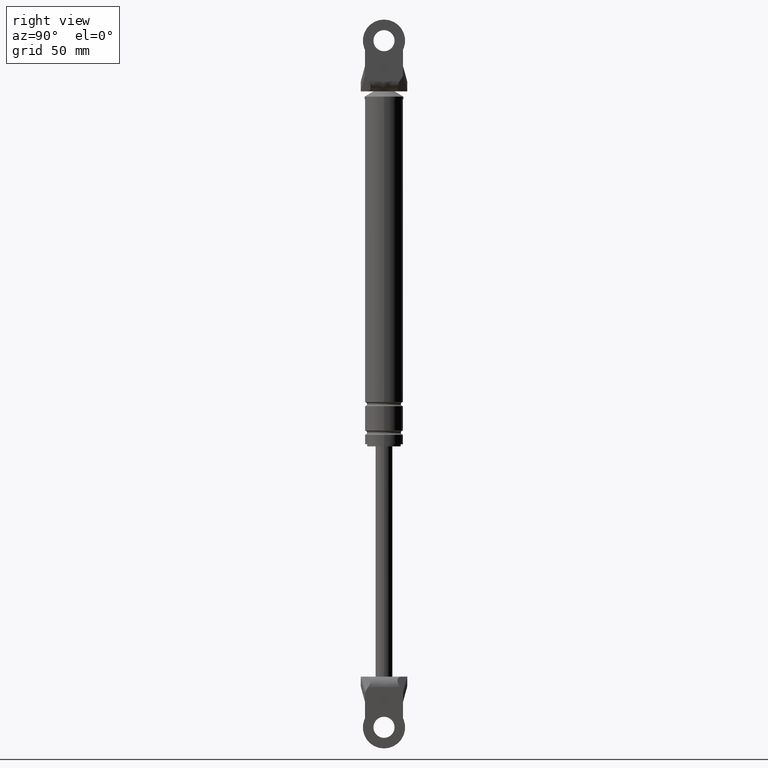
[diagram: clean part render]
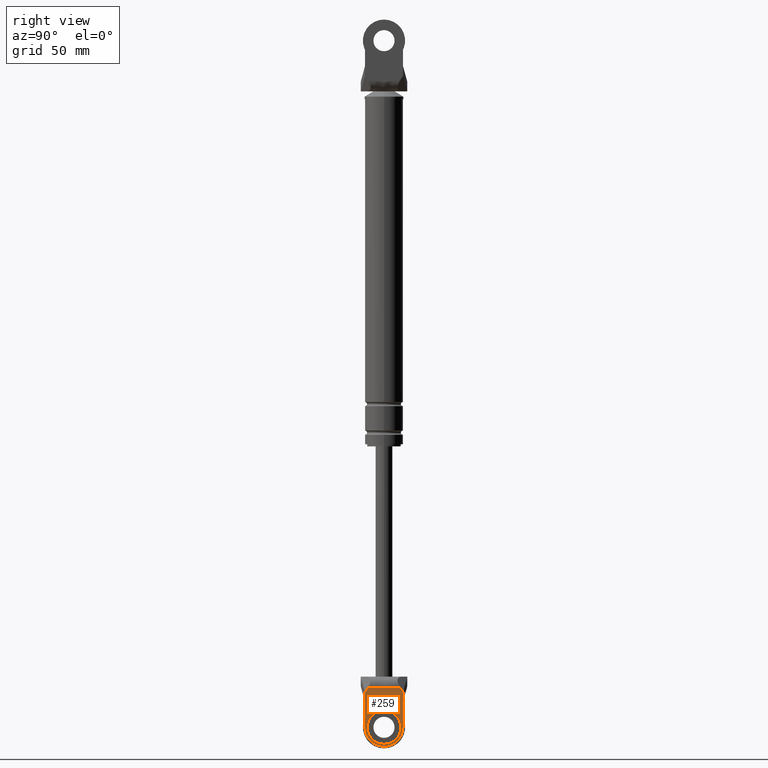
[diagram: same view with one face highlighted and labeled with its STEP entity id]
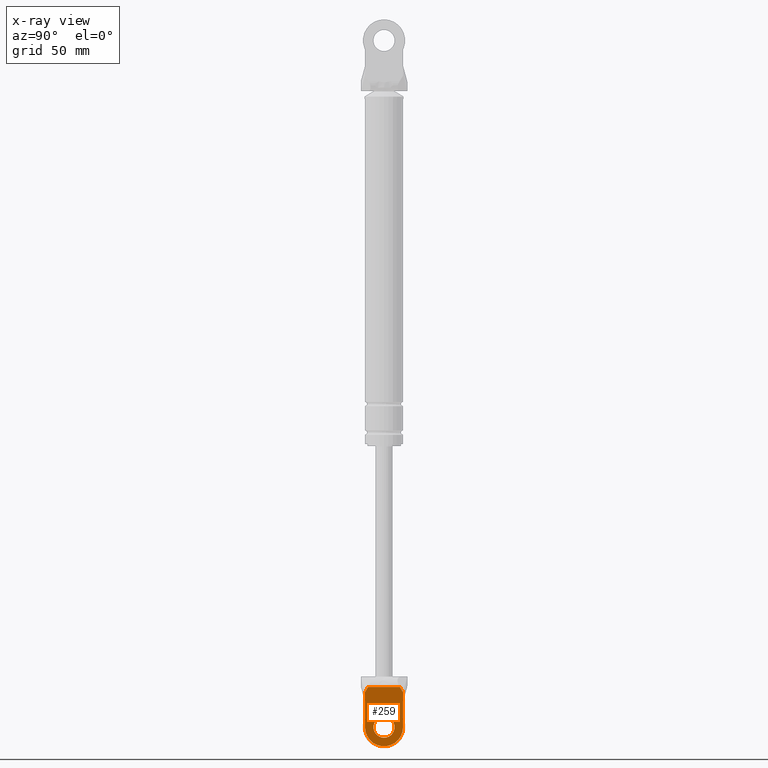
[diagram: x-ray of the same camera — body ghosted, the highlighted face saturated]
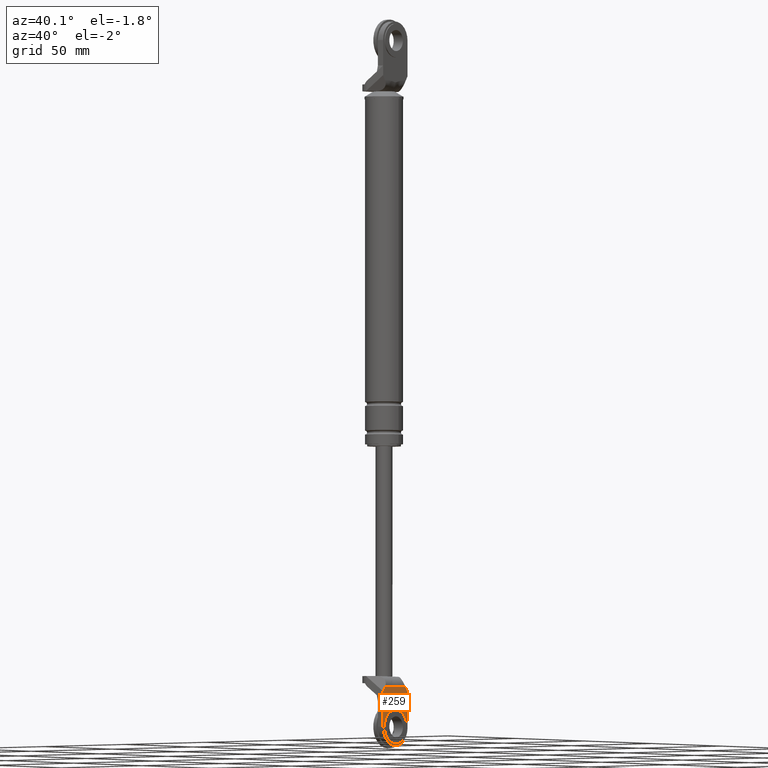
[diagram: same view with one face highlighted and labeled with its STEP entity id]
A machine part, right view. The second image highlights one B-rep face of the part: STEP entity #259.
The next image is the same camera in x-ray: the body ghosted, the highlighted face saturated — about 0% of this face is hidden behind the body in this view.
A second angle (auxiliary view) of the same face is appended — the face is thin or edge-on in the first view.
In plain terms, the highlighted planar face has unit normal (1, 0, 0).
Its self-contained STEP definition (entity closure, byte-faithful):
#259=ADVANCED_FACE('',(#845,#846),#844,.T.);
#844=PLANE('',#1578);
#845=FACE_OUTER_BOUND('',#1579,.T.);
#846=FACE_BOUND('',#1580,.T.);
#1575=CARTESIAN_POINT('',(7.00000000000E+000,-1.08000008639E+001,-1.90088870872E+002));
#1576=DIRECTION('',(1.00000000000E+000,0.00000000000E+000,0.00000000000E+000));
#1577=DIRECTION('',(0.00000000000E+000,0.00000000000E+000,-1.00000000000E+000));
#1578=AXIS2_PLACEMENT_3D('',#1575,#1576,#1577);
#1579=EDGE_LOOP('',(#2016,#2017,#2018,#2019,#2020,#2021,#2022,#2023,#2024,#2025));
#1580=EDGE_LOOP('',(#2026,#2027));
#2016=ORIENTED_EDGE('',*,*,#2285,.T.);
#2017=ORIENTED_EDGE('',*,*,#2286,.T.);
#2018=ORIENTED_EDGE('',*,*,#2287,.T.);
#2019=ORIENTED_EDGE('',*,*,#2288,.T.);
#2020=ORIENTED_EDGE('',*,*,#2289,.T.);
#2021=ORIENTED_EDGE('',*,*,#2290,.F.);
#2022=ORIENTED_EDGE('',*,*,#2291,.F.);
#2023=ORIENTED_EDGE('',*,*,#2292,.T.);
#2024=ORIENTED_EDGE('',*,*,#2293,.F.);
#2025=ORIENTED_EDGE('',*,*,#2294,.T.);
#2026=ORIENTED_EDGE('',*,*,#2295,.F.);
#2027=ORIENTED_EDGE('',*,*,#2296,.F.);
#2285=EDGE_CURVE('',#3198,#3199,#3200,.T.);
#2286=EDGE_CURVE('',#3199,#3206,#3207,.T.);
#2287=EDGE_CURVE('',#3206,#3213,#3214,.T.);
#2288=EDGE_CURVE('',#3213,#3220,#3221,.T.);
#2289=EDGE_CURVE('',#3220,#3227,#3228,.T.);
#2290=EDGE_CURVE('',#3234,#3227,#3235,.T.);
#2291=EDGE_CURVE('',#3241,#3234,#3242,.T.);
#2292=EDGE_CURVE('',#3241,#3248,#3249,.T.);
#2293=EDGE_CURVE('',#3255,#3248,#3256,.T.);
#2294=EDGE_CURVE('',#3255,#3198,#3262,.T.);
#2295=EDGE_CURVE('',#3268,#3269,#3270,.T.);
#2296=EDGE_CURVE('',#3269,#3268,#3276,.T.);
#3198=VERTEX_POINT('',#4187);
#3199=VERTEX_POINT('',#4188);
#3200=LINE('',#4189,#4190);
#3206=VERTEX_POINT('',#4192);
#3207=LINE('',#4193,#4194);
#3213=VERTEX_POINT('',#4196);
#3214=(BOUNDED_CURVE() B_SPLINE_CURVE(3,(#4197,#4198,#4199,#4200,#4201,#4202),.UNSPECIFIED.,.F.,.F.) B_SPLINE_CURVE_WITH_KNOTS((4,2,4),(0.00000000000E+000,2.23783750894E-003,4.47567501788E-003),.UNSPECIFIED.) CURVE() GEOMETRIC_REPRESENTATION_ITEM() RATIONAL_B_SPLINE_CURVE((1.00000000000E+000,1.00000000000E+000,1.00000000000E+000,1.00000000000E+000,1.00000000000E+000,1.00000000000E+000)) REPRESENTATION_ITEM('') );
#3220=VERTEX_POINT('',#4203);
#3221=LINE('',#4204,#4205);
#3227=VERTEX_POINT('',#4207);
#3228=LINE('',#4208,#4209);
#3234=VERTEX_POINT('',#4211);
#3235=LINE('',#4212,#4213);
#3241=VERTEX_POINT('',#4215);
#3242=LINE('',#4216,#4217);
#3248=VERTEX_POINT('',#4219);
#3249=CIRCLE('',#4223,9.00000000000E+000);
#3255=VERTEX_POINT('',#4224);
#3256=LINE('',#4225,#4226);
#3262=LINE('',#4228,#4229);
#3268=VERTEX_POINT('',#4231);
#3269=VERTEX_POINT('',#4232);
#3270=CIRCLE('',#4236,5.00000000000E+000);
#3276=CIRCLE('',#4240,5.00000000000E+000);
#4187=CARTESIAN_POINT('',(7.00000000000E+000,9.00000000000E+000,-1.95379525618E+002));
#4188=CARTESIAN_POINT('',(7.00000000000E+000,7.51280740496E+000,-1.93000015000E+002));
#4189=CARTESIAN_POINT('',(7.00000000000E+000,9.00000000000E+000,-1.95379525618E+002));
#4190=VECTOR('',#4191,2.80603146760E+000);
#4191=DIRECTION('',(0.00000000000E+000,-5.29998544994E-001,8.47998550886E-001));
#4192=CARTESIAN_POINT('',(7.00000000000E+000,2.23606797750E+000,-1.93000015000E+002));
#4193=CARTESIAN_POINT('',(7.00000000000E+000,7.51280740496E+000,-1.93000015000E+002));
#4194=VECTOR('',#4195,5.27673942746E+000);
#4195=DIRECTION('',(0.00000000000E+000,-1.00000000000E+000,0.00000000000E+000));
#4196=CARTESIAN_POINT('',(7.00000000000E+000,-2.23606797750E+000,-1.93000015000E+002));
#4197=CARTESIAN_POINT('',(7.00000000000E+000,2.23606797750E+000,-1.93000015000E+002));
#4198=CARTESIAN_POINT('',(7.00000000000E+000,1.48981762792E+000,-1.93000015000E+002));
#4199=CARTESIAN_POINT('',(7.00000000000E+000,7.45452759221E-001,-1.92899014059E+002));
#4200=CARTESIAN_POINT('',(7.00000000000E+000,-7.44938146996E-001,-1.92898974919E+002));
#4201=CARTESIAN_POINT('',(7.00000000000E+000,-1.48943110925E+000,-1.93000015000E+002));
#4202=CARTESIAN_POINT('',(7.00000000000E+000,-2.23606797750E+000,-1.93000015000E+002));
#4203=CARTESIAN_POINT('',(7.00000000000E+000,-7.51280740496E+000,-1.93000015000E+002));
#4204=CARTESIAN_POINT('',(7.00000000000E+000,-2.23606797750E+000,-1.93000015000E+002));
#4205=VECTOR('',#4206,5.27673942746E+000);
#4206=DIRECTION('',(0.00000000000E+000,-1.00000000000E+000,0.00000000000E+000));
#4207=CARTESIAN_POINT('',(7.00000000000E+000,-9.00000000000E+000,-1.95379525618E+002));
#4208=CARTESIAN_POINT('',(7.00000000000E+000,-7.51280740496E+000,-1.93000015000E+002));
#4209=VECTOR('',#4210,2.80603146760E+000);
#4210=DIRECTION('',(0.00000000000E+000,-5.29998544994E-001,-8.47998550886E-001));
#4211=CARTESIAN_POINT('',(7.00000000000E+000,-9.00000000000E+000,-2.00000015000E+002));
#4212=CARTESIAN_POINT('',(7.00000000000E+000,-9.00000000000E+000,-2.00000015000E+002));
#4213=VECTOR('',#4214,4.62048938173E+000);
#4214=DIRECTION('',(0.00000000000E+000,0.00000000000E+000,1.00000000000E+000));
#4215=CARTESIAN_POINT('',(7.00000000000E+000,-9.00000000000E+000,-2.12000014215E+002));
#4216=CARTESIAN_POINT('',(7.00000000000E+000,-9.00000000000E+000,-2.12000014215E+002));
#4217=VECTOR('',#4218,1.19999992146E+001);
#4218=DIRECTION('',(0.00000000000E+000,0.00000000000E+000,1.00000000000E+000));
#4219=CARTESIAN_POINT('',(7.00000000000E+000,9.00000000000E+000,-2.12000015000E+002));
#4220=CARTESIAN_POINT('',(7.00000000000E+000,3.58204186421E-014,-2.12000015000E+002));
#4221=DIRECTION('',(1.00000000000E+000,0.00000000000E+000,0.00000000000E+000));
#4222=DIRECTION('',(-0.00000000000E+000,-0.00000000000E+000,1.00000000000E+000));
#4223=AXIS2_PLACEMENT_3D('',#4220,#4221,#4222);
#4224=CARTESIAN_POINT('',(7.00000000000E+000,9.00000000000E+000,-2.00000015000E+002));
#4225=CARTESIAN_POINT('',(7.00000000000E+000,9.00000000000E+000,-2.00000015000E+002));
#4226=VECTOR('',#4227,1.20000000000E+001);
#4227=DIRECTION('',(0.00000000000E+000,0.00000000000E+000,-1.00000000000E+000));
#4228=CARTESIAN_POINT('',(7.00000000000E+000,9.00000000000E+000,-2.00000015000E+002));
#4229=VECTOR('',#4230,4.62048938173E+000);
#4230=DIRECTION('',(0.00000000000E+000,0.00000000000E+000,1.00000000000E+000));
#4231=CARTESIAN_POINT('',(7.00000000000E+000,3.58231962612E-014,-2.07000015000E+002));
#4232=CARTESIAN_POINT('',(7.00000000000E+000,3.58204186421E-014,-2.17000015000E+002));
#4233=CARTESIAN_POINT('',(7.00000000000E+000,3.58204186421E-014,-2.12000015000E+002));
#4234=DIRECTION('',(1.00000000000E+000,0.00000000000E+000,0.00000000000E+000));
#4235=DIRECTION('',(0.00000000000E+000,-1.22460635382E-016,-1.00000000000E+000));
#4236=AXIS2_PLACEMENT_3D('',#4233,#4234,#4235);
#4237=CARTESIAN_POINT('',(7.00000000000E+000,3.58204186421E-014,-2.12000015000E+002));
#4238=DIRECTION('',(1.00000000000E+000,0.00000000000E+000,0.00000000000E+000));
#4239=DIRECTION('',(0.00000000000E+000,-1.22460635382E-016,-1.00000000000E+000));
#4240=AXIS2_PLACEMENT_3D('',#4237,#4238,#4239);